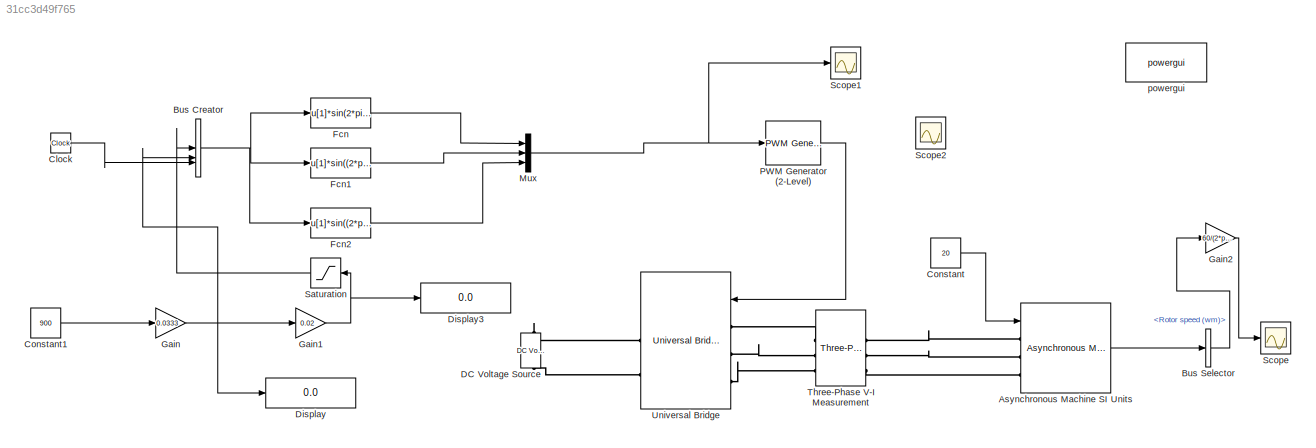
MODEL slx_31cc3d49f765
KIND model
CONFIG AbsTol = auto
CONFIG EnableMultiTasking = off
CONFIG FixedStep = auto
CONFIG MaxStep = auto
CONFIG MinStep = auto
CONFIG RelTol = 1e-3
CONFIG SampleTimeConstraint = Unconstrained
CONFIG SolverName = VariableStepAuto
CONFIG StartTime = 0.0
CONFIG StopTime = 2
BLOCK [Reference] Asynchronous Machine SI Units  REF=spsAsynchronousMachineSIUnitsLib/Asynchronous Machine
SI Units
  LibrarySourceBlock = sps_lib/Electrical Machines/Asynchronous Machine\nSI Units
  SourceBlock = spsAsynchronousMachineSIUnitsLib/Asynchronous Machine\nSI Units
  SourceType = Asynchronous Machine
BLOCK [BusCreator] Bus Creator
  DisplayOption = bar
  InheritFromInputs = on
  Inputs = 3
BLOCK [BusSelector] Bus Selector
  OutputSignals = Mechanical.Rotor speed (wm)
BLOCK [Clock] Clock
BLOCK [Constant] Constant
  Value = 20
BLOCK [Constant] Constant1
  Value = 900
BLOCK [Reference] DC Voltage Source  REF=spsDCVoltageSourceLib/DC Voltage Source
  LibrarySourceBlock = sps_lib/Sources/DC Voltage Source
  SourceBlock = spsDCVoltageSourceLib/DC Voltage Source
  SourceType = DC Voltage Source
BLOCK [Display] Display
  Decimation = 1
BLOCK [Display] Display3
  Decimation = 1
BLOCK [Fcn] Fcn
  Expr = u[1]*sin(2*pi*u[2]*u[3])
BLOCK [Fcn] Fcn1
  Expr = u[1]*sin((2*pi*u[2]*u[3])-(2*pi/3))
BLOCK [Fcn] Fcn2
  Expr = u[1]*sin((2*pi*u[2]*u[3])+(2*pi/3))
BLOCK [Gain] Gain
  Gain = 0.0333
BLOCK [Gain] Gain1
  Gain = 0.02
BLOCK [Gain] Gain2
  Gain = 60/(2*pi)
BLOCK [Mux] Mux
  DisplayOption = bar
  Inputs = 3
BLOCK [Reference] PWM Generator (2-Level)  REF=spsPWMGenerator2LevelLib/PWM Generator
(2-Level)
  LibrarySourceBlock = sps_lib/Power Electronics/Power Electronics Control/PWM Generator\n(2-Level)
  SourceBlock = spsPWMGenerator2LevelLib/PWM Generator\n(2-Level)
  SourceType = PWM Generator (2-Level)
BLOCK [Saturate] Saturation
  UpperLimit = 1
BLOCK [Scope] Scope
  Floating = off
  NumInputPorts = 1
  ScopeSpecificationString = Simulink.scopes.TimeScopeBlockCfg('CurrentConfiguration', extmgr.ConfigurationSet(extmgr.Configuration('Core','General UI',true),extmgr.Configuration('Core','Source UI',true),extmgr.Configuration('Sources','WiredSimulink',true),extmgr.Configuration('Visuals','Time Domain',true,'SerializedDisplays',{struct('MinYLimReal','318.55921','MaxYLimReal','1631.2712','YLabelReal','','MinYLimMag','318.55921',...<+1455ch>
BLOCK [Scope] Scope1
  Floating = off
  NumInputPorts = 1
  ScopeSpecificationString = Simulink.scopes.TimeScopeBlockCfg('CurrentConfiguration', extmgr.ConfigurationSet(extmgr.Configuration('Core','General UI',true),extmgr.Configuration('Core','Source UI',true),extmgr.Configuration('Sources','WiredSimulink',true,'DataLoggingVariableName','ScopeData1'),extmgr.Configuration('Visuals','Time Domain',true,'SerializedDisplays',{struct('MinYLimReal','-0.74925','MaxYLimReal','0.74925','YLab...<+1492ch>
BLOCK [Scope] Scope2
  Floating = off
  NumInputPorts = 1
  ScopeSpecificationString = Simulink.scopes.TimeScopeBlockCfg('CurrentConfiguration', extmgr.ConfigurationSet(extmgr.Configuration('Core','General UI',true),extmgr.Configuration('Core','Source UI',true),extmgr.Configuration('Sources','WiredSimulink',true,'DataLoggingVariableName','ScopeData2'),extmgr.Configuration('Visuals','Time Domain',true),extmgr.Configuration('Tools','Plot Navigation',true),extmgr.Configuration('Tools',...<+40ch>
BLOCK [Reference] Three-Phase V-I Measurement  REF=spsThreePhaseVIMeasurementLib/Three-Phase
V-I Measurement
  LibrarySourceBlock = sps_lib/Sensors and Measurements/Three-Phase\nV-I Measurement
  SourceBlock = spsThreePhaseVIMeasurementLib/Three-Phase\nV-I Measurement
  SourceType = Three-Phase VI Measurement
BLOCK [Reference] Universal Bridge  REF=spsUniversalBridgeLib/Universal Bridge
  LibrarySourceBlock = sps_lib/Power Electronics/Universal Bridge
  SourceBlock = spsUniversalBridgeLib/Universal Bridge
  SourceType = Universal Bridge
BLOCK [Reference] powergui  REF=sps_lib/powergui
  LibrarySourceBlock = sps_lib/powergui
  Priority = 1
  SourceBlock = sps_lib/powergui
  SourceType = PSB option menu block
LINE Asynchronous Machine SI Units:1 -> Bus Selector:1
NET Bus Creator:1 -> Fcn1:1, Fcn2:1, Fcn:1
LINE Bus Selector:1 -> Gain2:1
LINE Clock:1 -> Bus Creator:3
LINE Constant1:1 -> Gain:1
LINE Constant:1 -> Asynchronous Machine SI Units:1
LINE Fcn1:1 -> Mux:2
LINE Fcn2:1 -> Mux:3
LINE Fcn:1 -> Mux:1
NET Gain1:1 -> Display3:1, Saturation:1
LINE Gain2:1 -> Scope:1
NET Gain:1 -> Bus Creator:2, Display:1, Gain1:1
NET Mux:1 -> PWM Generator (2-Level):1, Scope1:1
LINE PWM Generator (2-Level):1 -> Universal Bridge:1
LINE Saturation:1 -> Bus Creator:1
PLINE Asynchronous Machine SI Units:LConn1 -- Three-Phase V-I Measurement:RConn1
PLINE Asynchronous Machine SI Units:LConn2 -- Three-Phase V-I Measurement:RConn2
PLINE Asynchronous Machine SI Units:LConn3 -- Three-Phase V-I Measurement:RConn3
PLINE DC Voltage Source:LConn1 -- Universal Bridge:RConn2
PLINE DC Voltage Source:RConn1 -- Universal Bridge:RConn1
PLINE Three-Phase V-I Measurement:LConn1 -- Universal Bridge:LConn1
PLINE Three-Phase V-I Measurement:LConn2 -- Universal Bridge:LConn2
PLINE Three-Phase V-I Measurement:LConn3 -- Universal Bridge:LConn3
note: NET lines group one-source signal fan-out (src -> all destinations, sorted); 1:1 wires keep LINE
